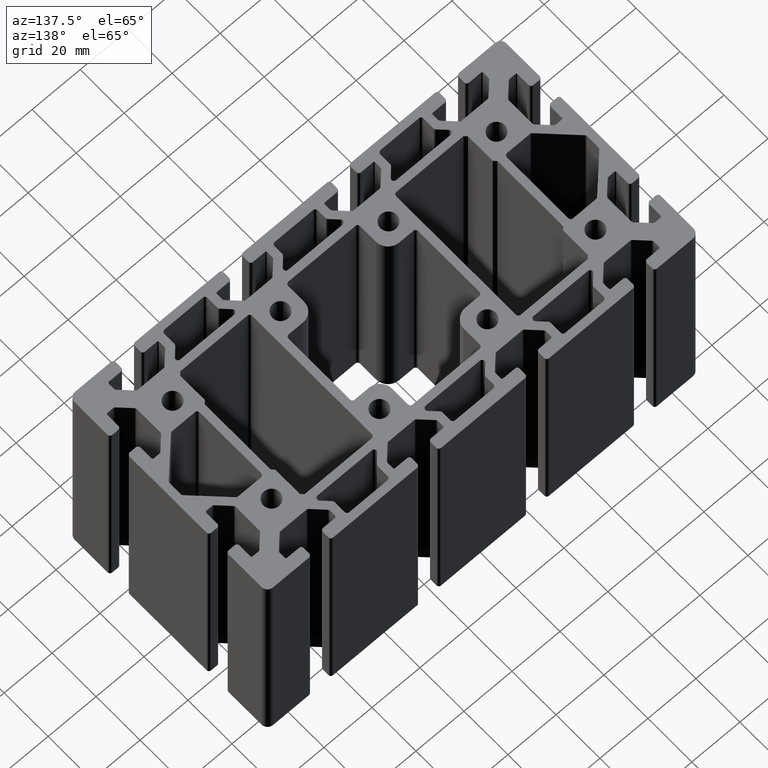
[diagram: clean part render]
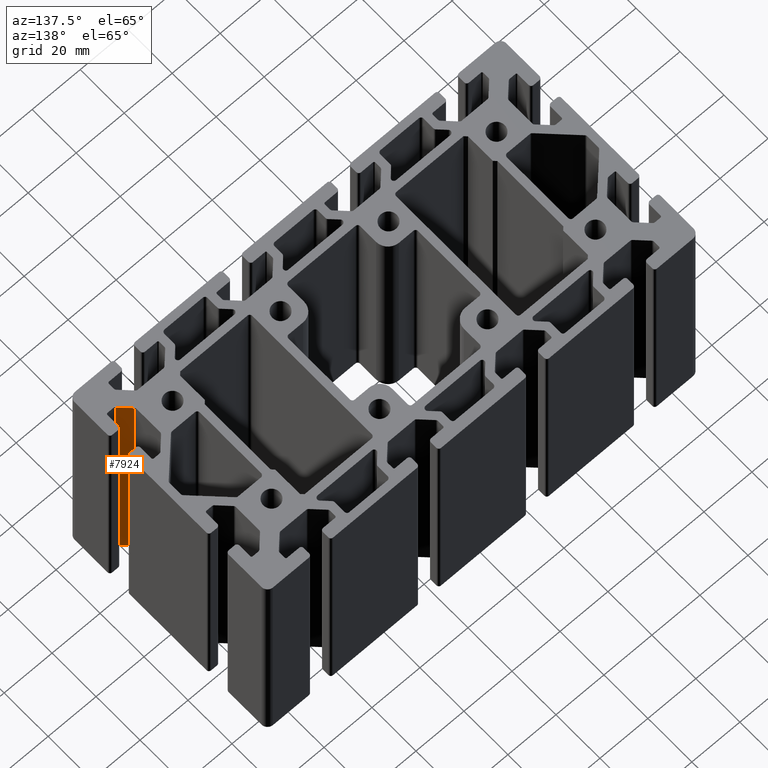
[diagram: same view with one face highlighted and labeled with its STEP entity id]
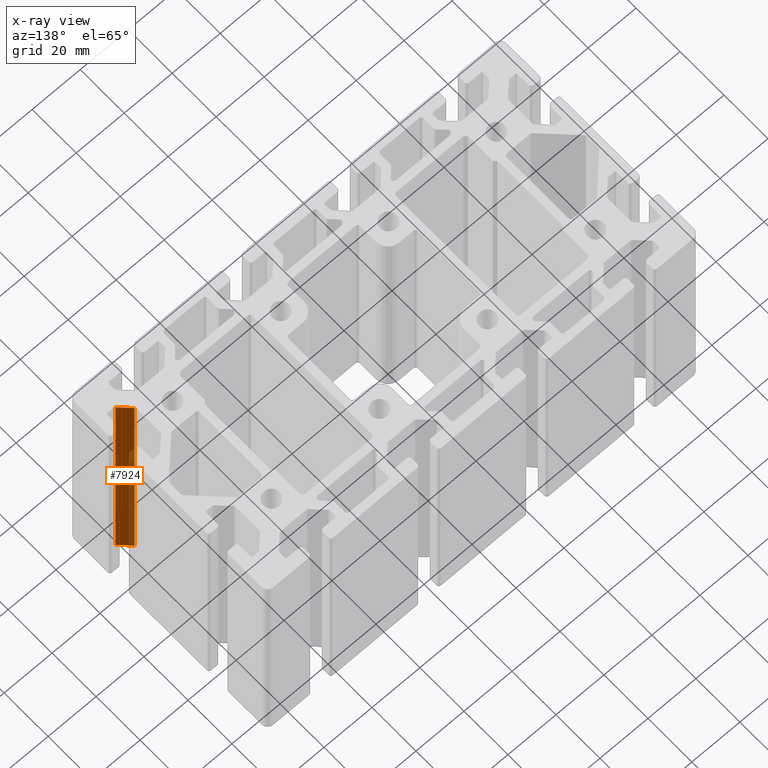
[diagram: x-ray of the same camera — body ghosted, the highlighted face saturated]
A machine part, auxiliary view. The second image highlights one B-rep face of the part: STEP entity #7924.
The next image is the same camera in x-ray: the body ghosted, the highlighted face saturated — about 20% of this face is hidden behind the body in this view.
In plain terms, the highlighted planar face has unit normal (-0.7071, -0.7071, 0).
Its self-contained STEP definition (entity closure, byte-faithful):
#892=FACE_OUTER_BOUND('',#1298,.T.);
#1298=EDGE_LOOP('',(#6055,#6056,#6057,#6058));
#1993=LINE('',#12746,#2793);
#1994=LINE('',#12750,#2794);
#1995=LINE('',#12752,#2795);
#1996=LINE('',#12753,#2796);
#2793=VECTOR('',#10335,100.);
#2794=VECTOR('',#10340,5.87867965644031);
#2795=VECTOR('',#10341,100.);
#2796=VECTOR('',#10342,5.87867965644031);
#3599=VERTEX_POINT('',#12743);
#3600=VERTEX_POINT('',#12745);
#3601=VERTEX_POINT('',#12749);
#3602=VERTEX_POINT('',#12751);
#4630=EDGE_CURVE('',#3600,#3599,#1993,.T.);
#4632=EDGE_CURVE('',#3601,#3599,#1994,.T.);
#4633=EDGE_CURVE('',#3602,#3601,#1995,.T.);
#4634=EDGE_CURVE('',#3600,#3602,#1996,.T.);
#6055=ORIENTED_EDGE('',*,*,#4632,.F.);
#6056=ORIENTED_EDGE('',*,*,#4633,.F.);
#6057=ORIENTED_EDGE('',*,*,#4634,.F.);
#6058=ORIENTED_EDGE('',*,*,#4630,.T.);
#7599=PLANE('',#8566);
#7924=ADVANCED_FACE('',(#892),#7599,.F.);
#8566=AXIS2_PLACEMENT_3D('',#12748,#10338,#10339);
#10335=DIRECTION('',(0.,0.,1.));
#10338=DIRECTION('center_axis',(-0.707106781186548,-0.707106781186547,0.));
#10339=DIRECTION('ref_axis',(0.707106781186547,-0.707106781186548,0.));
#10340=DIRECTION('',(-0.707106781186547,0.707106781186548,0.));
#10341=DIRECTION('',(0.,0.,1.));
#10342=DIRECTION('',(0.707106781186547,-0.707106781186548,0.));
#12743=CARTESIAN_POINT('',(77.7928932188131,-28.5502525316945,100.));
#12745=CARTESIAN_POINT('',(77.7928932188131,-28.5502525316945,0.));
#12746=CARTESIAN_POINT('',(77.7928932188131,-28.5502525316945,0.));
#12748=CARTESIAN_POINT('Origin',(77.7928932188131,-28.5502525316945,0.));
#12749=CARTESIAN_POINT('',(81.9497474683055,-32.7071067811869,100.));
#12750=CARTESIAN_POINT('',(51.2071067811863,-1.96446609406759,100.));
#12751=CARTESIAN_POINT('',(81.9497474683055,-32.7071067811869,0.));
#12752=CARTESIAN_POINT('',(81.9497474683055,-32.7071067811869,0.));
#12753=CARTESIAN_POINT('',(51.2071067811863,-1.96446609406759,0.));